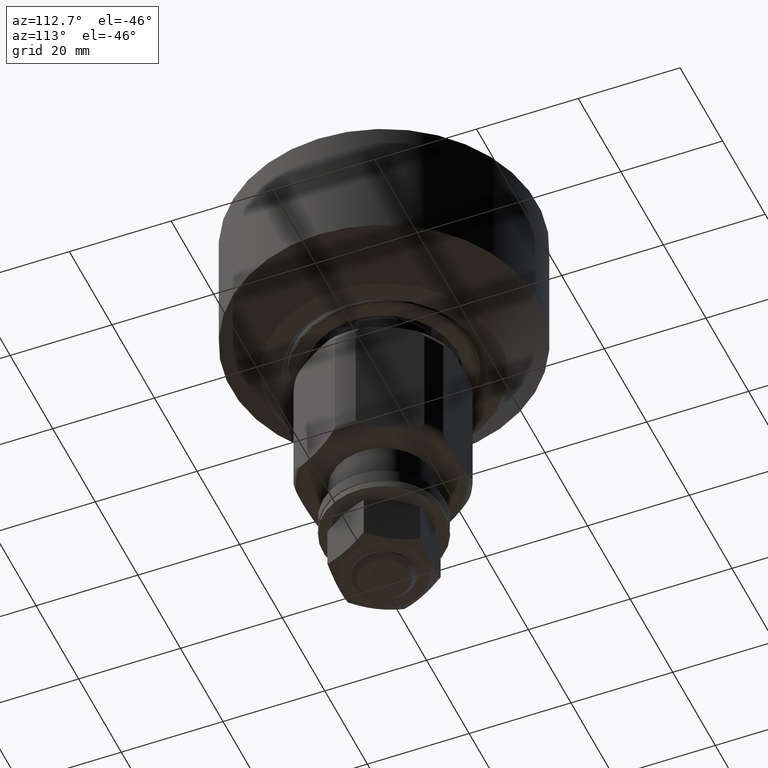
[diagram: clean part render]
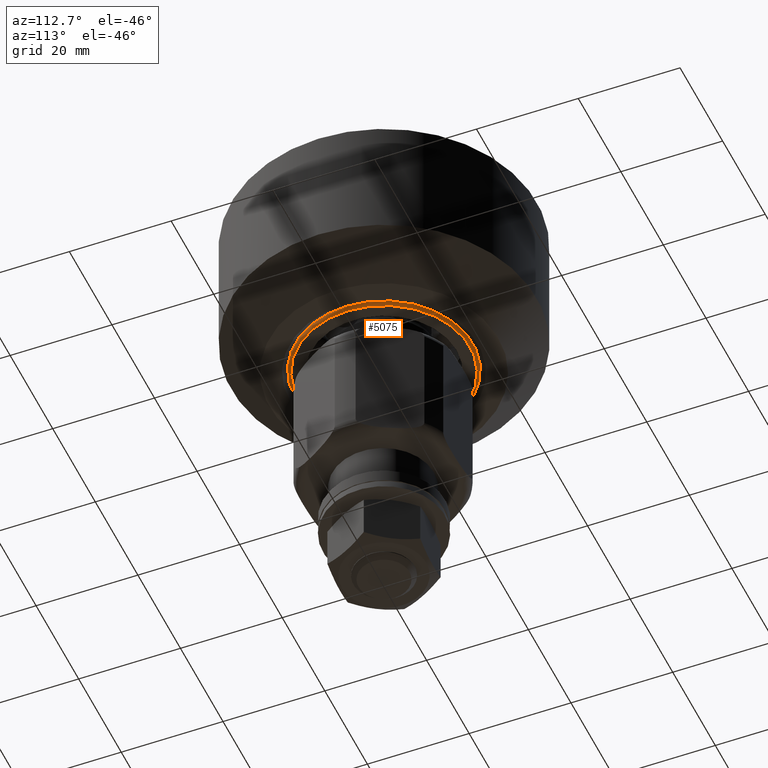
[diagram: same view with one face highlighted and labeled with its STEP entity id]
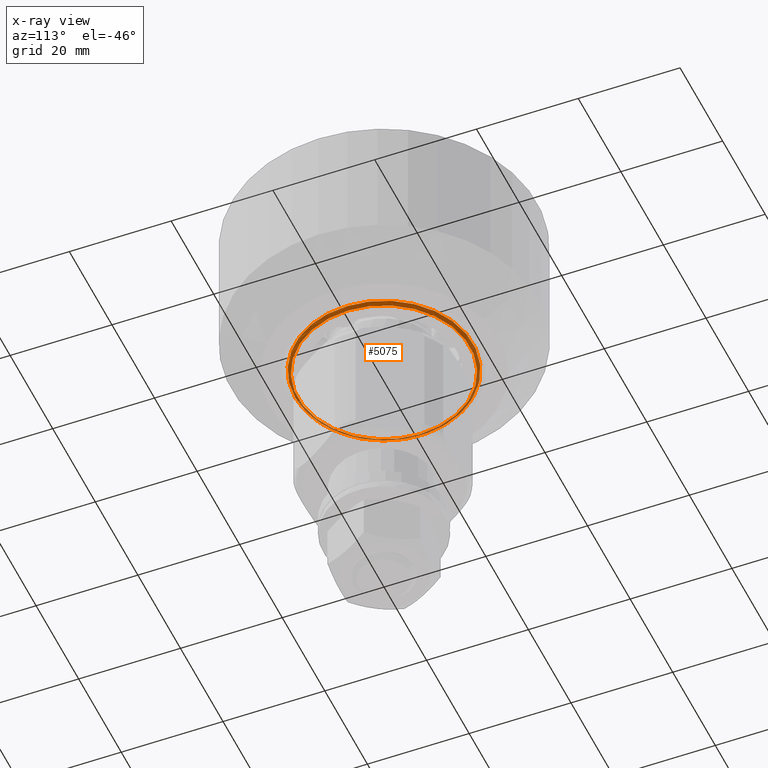
[diagram: x-ray of the same camera — body ghosted, the highlighted face saturated]
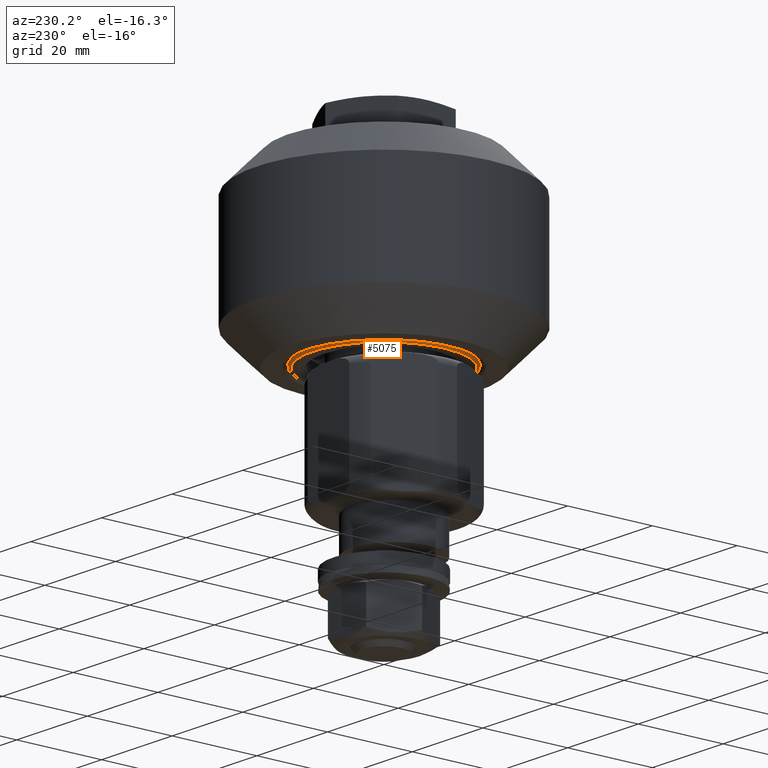
[diagram: same view with one face highlighted and labeled with its STEP entity id]
A machine part, auxiliary view. The second image highlights one B-rep face of the part: STEP entity #5075.
The next image is the same camera in x-ray: the body ghosted, the highlighted face saturated — about 18% of this face is hidden behind the body in this view.
A second angle (auxiliary view) of the same face is appended — the face is thin or edge-on in the first view.
In plain terms, the highlighted toroidal blend (fillet) surface has major radius 16.9 mm and minor (blend) radius 0.6 mm.
Its self-contained STEP definition (entity closure, byte-faithful):
#137=TOROIDAL_SURFACE('',#5786,16.9,0.6);
#687=FACE_OUTER_BOUND('',#977,.T.);
#977=EDGE_LOOP('',(#4604,#4605,#4606,#4607,#4608));
#1241=CIRCLE('',#5782,17.5);
#1242=CIRCLE('',#5783,17.5);
#1244=CIRCLE('',#5787,16.9);
#1245=CIRCLE('',#5788,0.6);
#2436=VERTEX_POINT('',#9153);
#2437=VERTEX_POINT('',#9154);
#2439=VERTEX_POINT('',#9162);
#3175=EDGE_CURVE('',#2436,#2437,#1241,.T.);
#3177=EDGE_CURVE('',#2437,#2436,#1242,.T.);
#3179=EDGE_CURVE('',#2439,#2439,#1244,.T.);
#3180=EDGE_CURVE('',#2439,#2437,#1245,.T.);
#4604=ORIENTED_EDGE('',*,*,#3179,.T.);
#4605=ORIENTED_EDGE('',*,*,#3180,.T.);
#4606=ORIENTED_EDGE('',*,*,#3177,.T.);
#4607=ORIENTED_EDGE('',*,*,#3175,.T.);
#4608=ORIENTED_EDGE('',*,*,#3180,.F.);
#5075=ADVANCED_FACE('',(#687),#137,.T.);
#5782=AXIS2_PLACEMENT_3D('',#9155,#7111,#7112);
#5783=AXIS2_PLACEMENT_3D('',#9157,#7114,#7115);
#5786=AXIS2_PLACEMENT_3D('',#9161,#7120,#7121);
#5787=AXIS2_PLACEMENT_3D('',#9163,#7122,#7123);
#5788=AXIS2_PLACEMENT_3D('',#9164,#7124,#7125);
#7111=DIRECTION('center_axis',(0.,0.,1.));
#7112=DIRECTION('ref_axis',(-1.22464679914735E-16,-1.,0.));
#7114=DIRECTION('center_axis',(0.,0.,1.));
#7115=DIRECTION('ref_axis',(-1.22464679914735E-16,-1.,0.));
#7120=DIRECTION('center_axis',(0.,0.,1.));
#7121=DIRECTION('ref_axis',(1.,0.,0.));
#7122=DIRECTION('center_axis',(0.,0.,-1.));
#7123=DIRECTION('ref_axis',(-1.22464679914735E-16,-1.,0.));
#7124=DIRECTION('center_axis',(1.22464679914735E-16,-1.,0.));
#7125=DIRECTION('ref_axis',(-1.,-1.22464679914735E-16,0.));
#9153=CARTESIAN_POINT('',(2.14313189850787E-15,-17.5,10.4));
#9154=CARTESIAN_POINT('',(-17.5,-2.14313189850787E-15,10.4));
#9155=CARTESIAN_POINT('Origin',(0.,0.,10.4));
#9157=CARTESIAN_POINT('Origin',(0.,0.,10.4));
#9161=CARTESIAN_POINT('Origin',(0.,0.,10.4));
#9162=CARTESIAN_POINT('',(-16.9,-2.06965309055903E-15,11.));
#9163=CARTESIAN_POINT('Origin',(0.,0.,11.));
#9164=CARTESIAN_POINT('Origin',(-16.9,-2.06965309055903E-15,10.4));